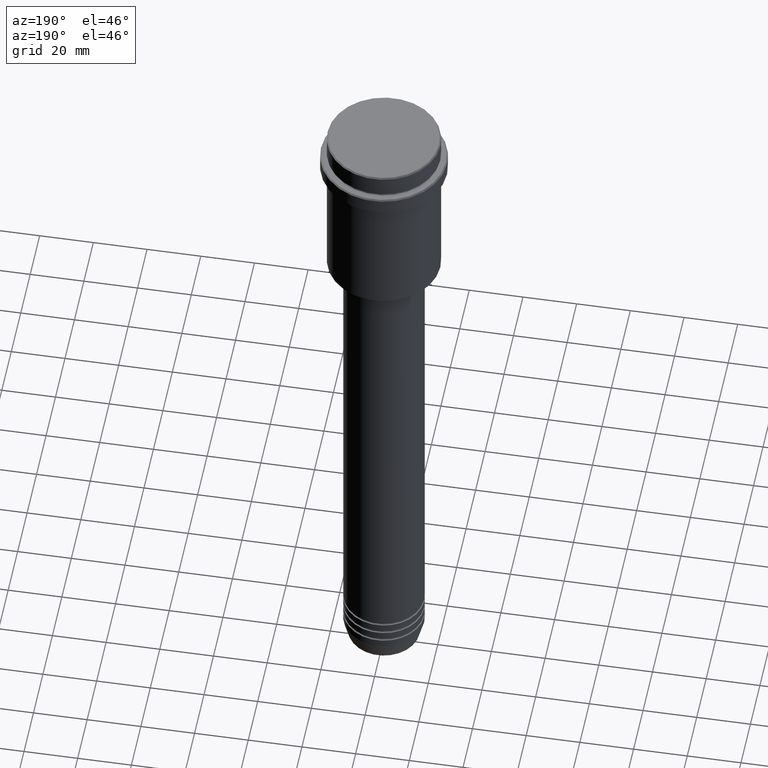
[diagram: clean part render]
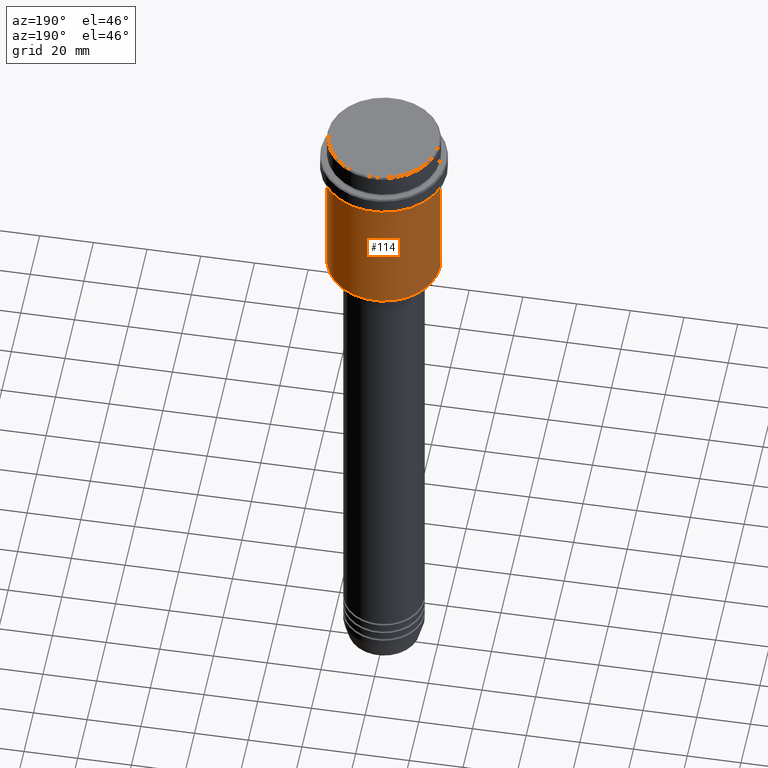
[diagram: same view with one face highlighted and labeled with its STEP entity id]
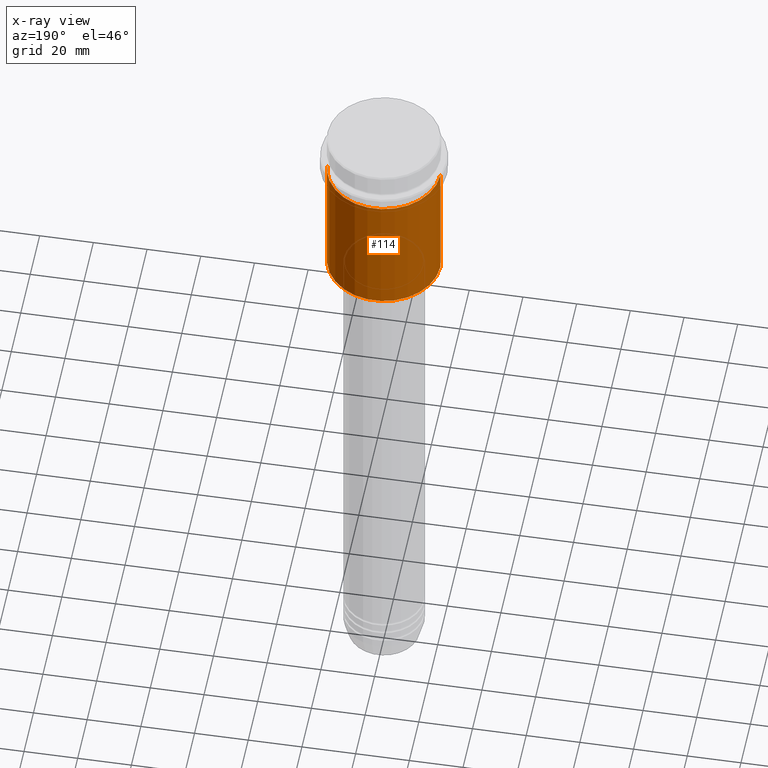
[diagram: x-ray of the same camera — body ghosted, the highlighted face saturated]
A machine part, auxiliary view. The second image highlights one B-rep face of the part: STEP entity #114.
The next image is the same camera in x-ray: the body ghosted, the highlighted face saturated — about 0% of this face is hidden behind the body in this view.
In plain terms, the highlighted cylindrical surface (partial cylindrical patch) has radius 21 mm, axis along (-0, -0, 1).
Its self-contained STEP definition (entity closure, byte-faithful):
#5 = FACE_OUTER_BOUND ( 'NONE', #41, .T. ) ;
#12 = CARTESIAN_POINT ( 'NONE',  ( -20.99999999999999645, 2.571758278209441267E-15, -16.00000000000000355 ) ) ;
#41 = EDGE_LOOP ( 'NONE', ( #900, #1044, #1325, #115 ) ) ;
#74 = CARTESIAN_POINT ( 'NONE',  ( 20.99999999999999645, 0.000000000000000000, -16.00000000000000355 ) ) ;
#114 = ADVANCED_FACE ( 'NONE', ( #5 ), #347, .T. ) ;
#115 = ORIENTED_EDGE ( 'NONE', *, *, #282, .F. ) ;
#163 = EDGE_CURVE ( 'NONE', #1333, #715, #977, .T. ) ;
#165 = CARTESIAN_POINT ( 'NONE',  ( 0.000000000000000000, 0.000000000000000000, -64.49999999999997158 ) ) ;
#282 = EDGE_CURVE ( 'NONE', #1018, #1180, #685, .T. ) ;
#288 = DIRECTION ( 'NONE',  ( -0.000000000000000000, -0.000000000000000000, 1.000000000000000000 ) ) ;
#347 = CYLINDRICAL_SURFACE ( 'NONE', #1297, 20.99999999999999645 ) ;
#401 = CARTESIAN_POINT ( 'NONE',  ( 0.000000000000000000, 0.000000000000000000, -16.00000000000000355 ) ) ;
#434 = CARTESIAN_POINT ( 'NONE',  ( 20.99999999999999645, 0.000000000000000000, -64.49999999999997158 ) ) ;
#489 = CARTESIAN_POINT ( 'NONE',  ( 20.99999999999999645, 0.000000000000000000, 0.000000000000000000 ) ) ;
#591 = DIRECTION ( 'NONE',  ( -0.000000000000000000, -0.000000000000000000, 1.000000000000000000 ) ) ;
#655 = CARTESIAN_POINT ( 'NONE',  ( -20.99999999999999645, 2.571758278209441267E-15, 0.000000000000000000 ) ) ;
#668 = AXIS2_PLACEMENT_3D ( 'NONE', #165, #591, #1024 ) ;
#685 = LINE ( 'NONE', #489, #751 ) ;
#691 = VECTOR ( 'NONE', #1090, 1000.000000000000000 ) ;
#715 = VERTEX_POINT ( 'NONE', #12 ) ;
#751 = VECTOR ( 'NONE', #288, 1000.000000000000000 ) ;
#775 = DIRECTION ( 'NONE',  ( -0.000000000000000000, -0.000000000000000000, 1.000000000000000000 ) ) ;
#831 = DIRECTION ( 'NONE',  ( 1.000000000000000000, 0.000000000000000000, 0.000000000000000000 ) ) ;
#862 = CARTESIAN_POINT ( 'NONE',  ( 0.000000000000000000, 0.000000000000000000, 0.000000000000000000 ) ) ;
#900 = ORIENTED_EDGE ( 'NONE', *, *, #1170, .T. ) ;
#925 = AXIS2_PLACEMENT_3D ( 'NONE', #401, #935, #831 ) ;
#935 = DIRECTION ( 'NONE',  ( -0.000000000000000000, -0.000000000000000000, 1.000000000000000000 ) ) ;
#962 = CIRCLE ( 'NONE', #925, 20.99999999999999645 ) ;
#977 = LINE ( 'NONE', #655, #691 ) ;
#1018 = VERTEX_POINT ( 'NONE', #434 ) ;
#1024 = DIRECTION ( 'NONE',  ( -1.000000000000000000, 0.000000000000000000, 0.000000000000000000 ) ) ;
#1044 = ORIENTED_EDGE ( 'NONE', *, *, #163, .T. ) ;
#1090 = DIRECTION ( 'NONE',  ( -0.000000000000000000, -0.000000000000000000, 1.000000000000000000 ) ) ;
#1161 = EDGE_CURVE ( 'NONE', #1180, #715, #962, .T. ) ;
#1170 = EDGE_CURVE ( 'NONE', #1018, #1333, #1251, .T. ) ;
#1180 = VERTEX_POINT ( 'NONE', #74 ) ;
#1251 = CIRCLE ( 'NONE', #668, 20.99999999999999645 ) ;
#1297 = AXIS2_PLACEMENT_3D ( 'NONE', #862, #775, #1334 ) ;
#1325 = ORIENTED_EDGE ( 'NONE', *, *, #1161, .F. ) ;
#1330 = CARTESIAN_POINT ( 'NONE',  ( -20.99999999999999645, 2.571758278209441267E-15, -64.49999999999997158 ) ) ;
#1333 = VERTEX_POINT ( 'NONE', #1330 ) ;
#1334 = DIRECTION ( 'NONE',  ( 1.000000000000000000, 0.000000000000000000, 0.000000000000000000 ) ) ;